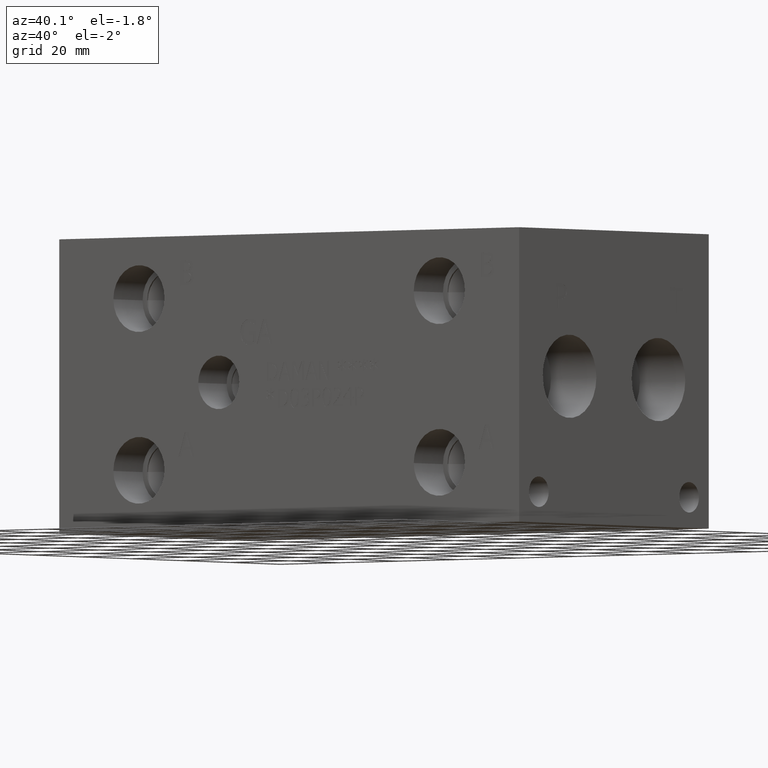
[diagram: clean part render]
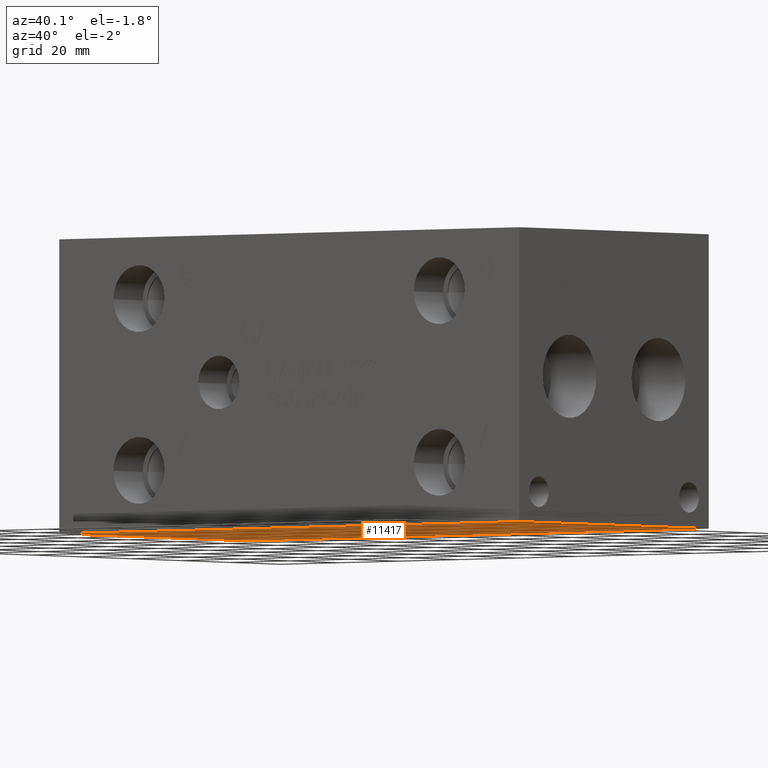
[diagram: same view with one face highlighted and labeled with its STEP entity id]
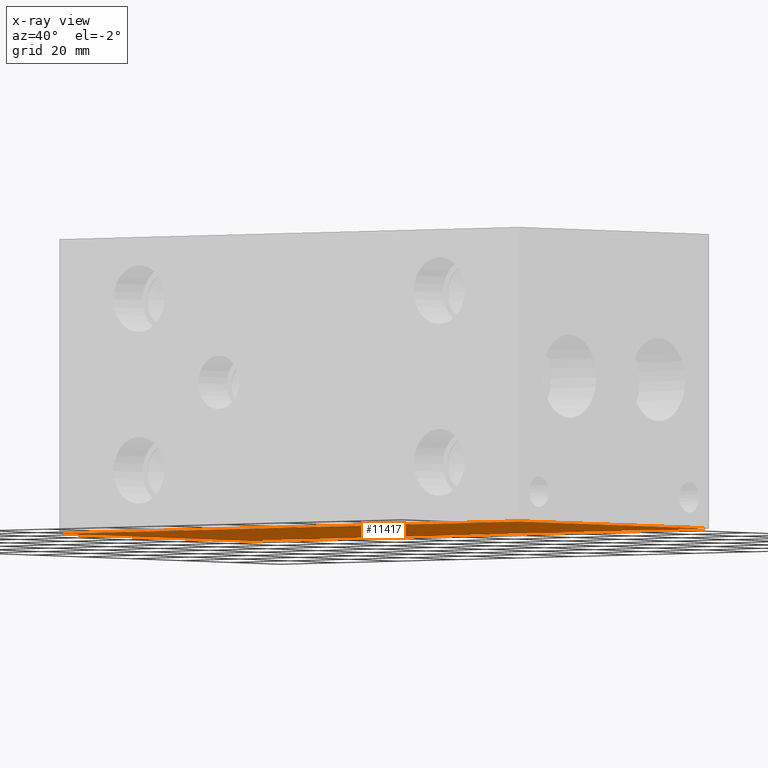
[diagram: x-ray of the same camera — body ghosted, the highlighted face saturated]
A machine part, auxiliary view. The second image highlights one B-rep face of the part: STEP entity #11417.
The next image is the same camera in x-ray: the body ghosted, the highlighted face saturated — about 0% of this face is hidden behind the body in this view.
In plain terms, the highlighted planar face has unit normal (0, 0, 1).
Its self-contained STEP definition (entity closure, byte-faithful):
#737=PLANE('',#12057);
#1320=FACE_OUTER_BOUND('',#2001,.T.);
#2001=EDGE_LOOP('',(#10231,#10232,#10233,#10234));
#2034=LINE('',#14605,#3122);
#2094=LINE('',#14880,#3182);
#2404=LINE('',#16851,#3492);
#3088=LINE('',#19493,#4176);
#3122=VECTOR('',#12112,10.);
#3182=VECTOR('',#12226,10.);
#3492=VECTOR('',#12726,10.);
#4176=VECTOR('',#14390,10.);
#4498=VERTEX_POINT('',#14603);
#4499=VERTEX_POINT('',#14604);
#4558=VERTEX_POINT('',#14878);
#4559=VERTEX_POINT('',#14879);
#5594=EDGE_CURVE('',#4498,#4499,#2034,.T.);
#5678=EDGE_CURVE('',#4558,#4559,#2094,.T.);
#6152=EDGE_CURVE('',#4559,#4498,#2404,.T.);
#7107=EDGE_CURVE('',#4499,#4558,#3088,.T.);
#10231=ORIENTED_EDGE('',*,*,#6152,.F.);
#10232=ORIENTED_EDGE('',*,*,#5678,.F.);
#10233=ORIENTED_EDGE('',*,*,#7107,.F.);
#10234=ORIENTED_EDGE('',*,*,#5594,.F.);
#11417=ADVANCED_FACE('',(#1320),#737,.F.);
#12057=AXIS2_PLACEMENT_3D('',#19498,#14398,#14399);
#12112=DIRECTION('',(0.,1.,0.));
#12226=DIRECTION('',(0.,-1.,0.));
#12726=DIRECTION('',(1.,0.,0.));
#14390=DIRECTION('',(-1.,0.,0.));
#14398=DIRECTION('center_axis',(0.,0.,1.));
#14399=DIRECTION('ref_axis',(1.,0.,0.));
#14603=CARTESIAN_POINT('',(155.575,0.,0.));
#14604=CARTESIAN_POINT('',(155.575,76.2,0.));
#14605=CARTESIAN_POINT('',(155.575,0.,0.));
#14878=CARTESIAN_POINT('',(0.,76.2,0.));
#14879=CARTESIAN_POINT('',(0.,0.,0.));
#14880=CARTESIAN_POINT('',(0.,76.2,0.));
#16851=CARTESIAN_POINT('',(0.,0.,0.));
#19493=CARTESIAN_POINT('',(155.575,76.2,0.));
#19498=CARTESIAN_POINT('Origin',(77.7875,38.1,0.));